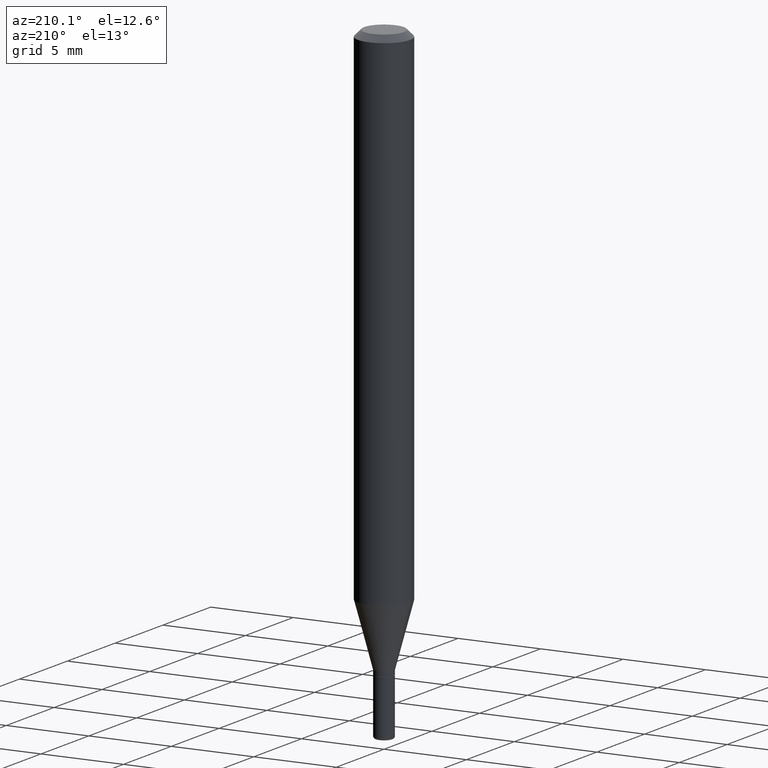
[diagram: clean part render]
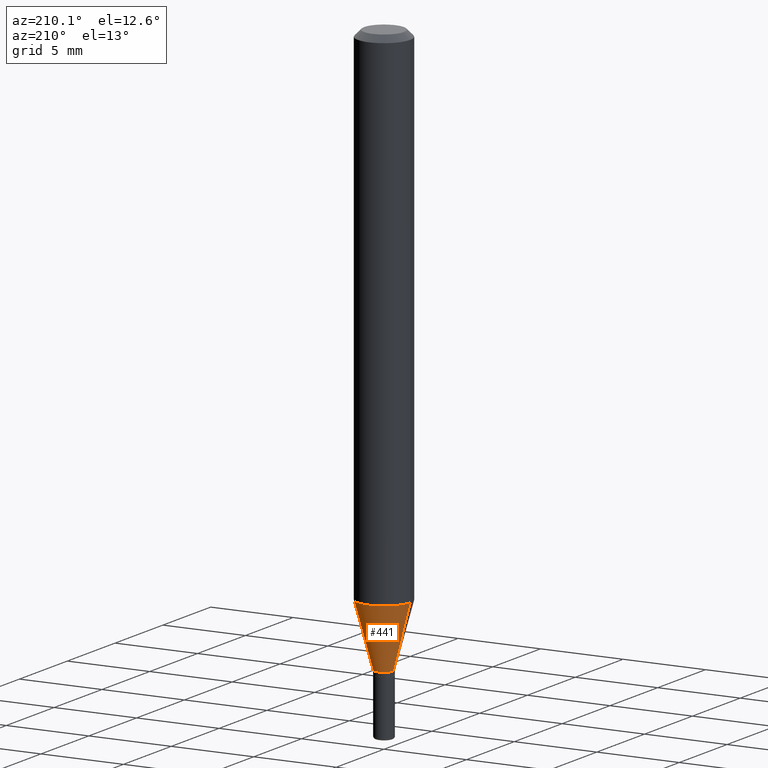
[diagram: same view with one face highlighted and labeled with its STEP entity id]
A machine part, auxiliary view. The second image highlights one B-rep face of the part: STEP entity #441.
In plain terms, the highlighted conical surface has half-angle 15 deg.
Its self-contained STEP definition (entity closure, byte-faithful):
#3 = VERTEX_POINT ( 'NONE', #460 ) ;
#10 = ORIENTED_EDGE ( 'NONE', *, *, #31, .T. ) ;
#20 = ORIENTED_EDGE ( 'NONE', *, *, #478, .T. ) ;
#31 = EDGE_CURVE ( 'NONE', #309, #132, #282, .T. ) ;
#58 = VECTOR ( 'NONE', #61, 39.37007874015748854 ) ;
#61 = DIRECTION ( 'NONE',  ( -0.2588190451025206840, 5.211531920934545520E-15, 0.9659258262890682012 ) ) ;
#66 = FACE_OUTER_BOUND ( 'NONE', #510, .T. ) ;
#84 = DIRECTION ( 'NONE',  ( -2.445468806185136597E-29, 3.491481338843145583E-15, 1.000000000000000000 ) ) ;
#97 = EDGE_CURVE ( 'NONE', #309, #293, #500, .T. ) ;
#132 = VERTEX_POINT ( 'NONE', #271 ) ;
#144 = DIRECTION ( 'NONE',  ( -2.445468806185136597E-29, 3.491481338843145583E-15, 1.000000000000000000 ) ) ;
#161 = ORIENTED_EDGE ( 'NONE', *, *, #400, .F. ) ;
#178 = CARTESIAN_POINT ( 'NONE',  ( 0.06250000000000000000, -4.646176951478207651E-15, -1.205717967697245596 ) ) ;
#221 = DIRECTION ( 'NONE',  ( 1.000000000000000000, -6.982962677686286432E-15, 0.000000000000000000 ) ) ;
#223 = DIRECTION ( 'NONE',  ( -2.445468806185136597E-29, 3.491481338843145583E-15, 1.000000000000000000 ) ) ;
#226 = AXIS2_PLACEMENT_3D ( 'NONE', #261, #144, #280 ) ;
#250 = DIRECTION ( 'NONE',  ( 1.000000000000000000, -6.982962677686270655E-15, 0.000000000000000000 ) ) ;
#261 = CARTESIAN_POINT ( 'NONE',  ( 3.313610232380861411E-29, -4.730957214132463998E-15, -1.355000000000000426 ) ) ;
#271 = CARTESIAN_POINT ( 'NONE',  ( -0.02250000000000007896, -4.168368836429596353E-15, -1.355000000000000426 ) ) ;
#275 = AXIS2_PLACEMENT_3D ( 'NONE', #285, #84, #250 ) ;
#280 = DIRECTION ( 'NONE',  ( 1.000000000000000000, -6.982962677686286432E-15, 0.000000000000000000 ) ) ;
#282 = CIRCLE ( 'NONE', #512, 0.02250000000000007896 ) ;
#285 = CARTESIAN_POINT ( 'NONE',  ( 2.948545679060552191E-29, -4.209741784122815192E-15, -1.205717967697245596 ) ) ;
#293 = VERTEX_POINT ( 'NONE', #178 ) ;
#298 = CARTESIAN_POINT ( 'NONE',  ( -0.02250000000000007896, -4.571085098586440920E-15, -1.355000000000000426 ) ) ;
#304 = CONICAL_SURFACE ( 'NONE', #226, 0.02250000000000007896, 0.2617993877991494078 ) ;
#309 = VERTEX_POINT ( 'NONE', #485 ) ;
#334 = DIRECTION ( 'NONE',  ( 0.2588190451025206840, 1.565188264969626504E-15, 0.9659258262890682012 ) ) ;
#338 = CIRCLE ( 'NONE', #275, 0.06250000000000000000 ) ;
#344 = ORIENTED_EDGE ( 'NONE', *, *, #97, .F. ) ;
#345 = CARTESIAN_POINT ( 'NONE',  ( 0.02250000000000007896, -4.888073874380405630E-15, -1.355000000000000426 ) ) ;
#400 = EDGE_CURVE ( 'NONE', #293, #3, #338, .T. ) ;
#411 = CARTESIAN_POINT ( 'NONE',  ( 3.313610232380861411E-29, -4.730957214132463998E-15, -1.355000000000000426 ) ) ;
#421 = LINE ( 'NONE', #298, #58 ) ;
#429 = VECTOR ( 'NONE', #334, 39.37007874015748854 ) ;
#441 = ADVANCED_FACE ( 'NONE', ( #66 ), #304, .T. ) ;
#460 = CARTESIAN_POINT ( 'NONE',  ( -0.06250000000000000000, -3.765652574272752576E-15, -1.205717967697245596 ) ) ;
#478 = EDGE_CURVE ( 'NONE', #132, #3, #421, .T. ) ;
#485 = CARTESIAN_POINT ( 'NONE',  ( 0.02250000000000007896, -4.888073874380405630E-15, -1.355000000000000426 ) ) ;
#500 = LINE ( 'NONE', #345, #429 ) ;
#510 = EDGE_LOOP ( 'NONE', ( #10, #20, #161, #344 ) ) ;
#512 = AXIS2_PLACEMENT_3D ( 'NONE', #411, #223, #221 ) ;